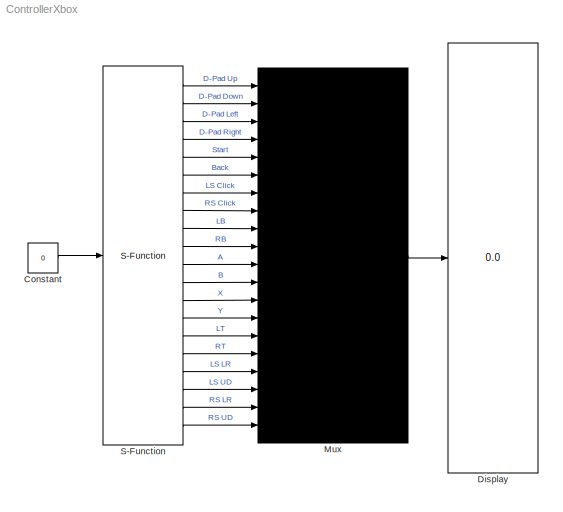
MODEL ControllerXbox
KIND model
BLOCK [Constant] Constant
  SID = 3
  Value = 0
BLOCK [Display] Display
  Decimation = 1
  Ports = [1]
  SID = 6
BLOCK [Mux] Mux
  DisplayOption = signals
  Inputs = 20
  Ports = [20, 1]
  SID = 7
BLOCK [S-Function] S-Function
  EnableBusSupport = off
  FunctionName = controller_xbox
  Ports = [1, 20]
  SID = 2
LINE Constant:1 -> S-Function:1
LINE Mux:1 -> Display:1
LINE S-Function:1 -> Mux:1
LINE S-Function:10 -> Mux:10
LINE S-Function:11 -> Mux:11
LINE S-Function:12 -> Mux:12
LINE S-Function:13 -> Mux:13
LINE S-Function:14 -> Mux:14
LINE S-Function:15 -> Mux:15
LINE S-Function:16 -> Mux:16
LINE S-Function:17 -> Mux:17
LINE S-Function:18 -> Mux:18
LINE S-Function:19 -> Mux:19
LINE S-Function:2 -> Mux:2
LINE S-Function:20 -> Mux:20
LINE S-Function:3 -> Mux:3
LINE S-Function:4 -> Mux:4
LINE S-Function:5 -> Mux:5
LINE S-Function:6 -> Mux:6
LINE S-Function:7 -> Mux:7
LINE S-Function:8 -> Mux:8
LINE S-Function:9 -> Mux:9
